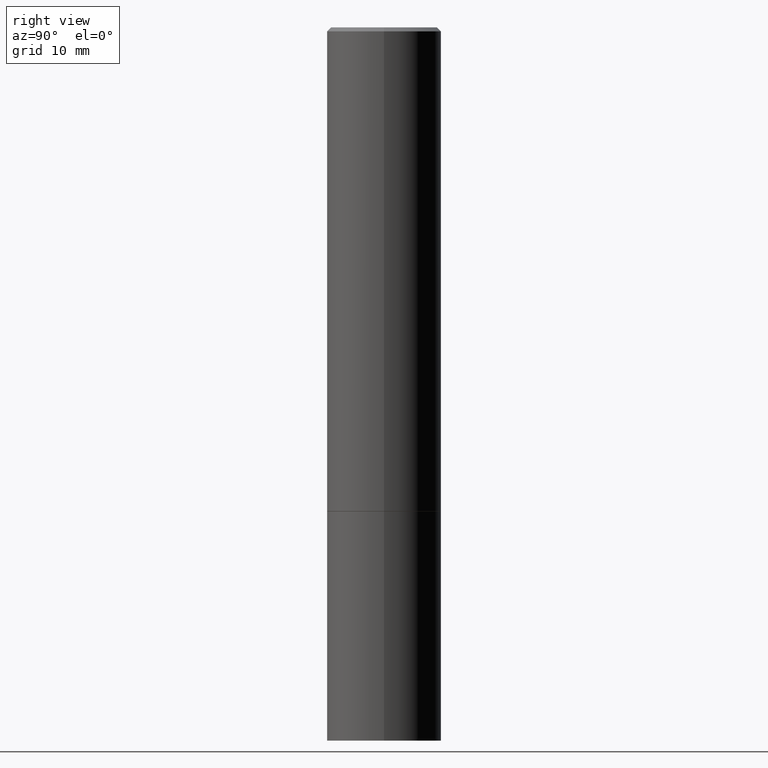
[diagram: clean part render]
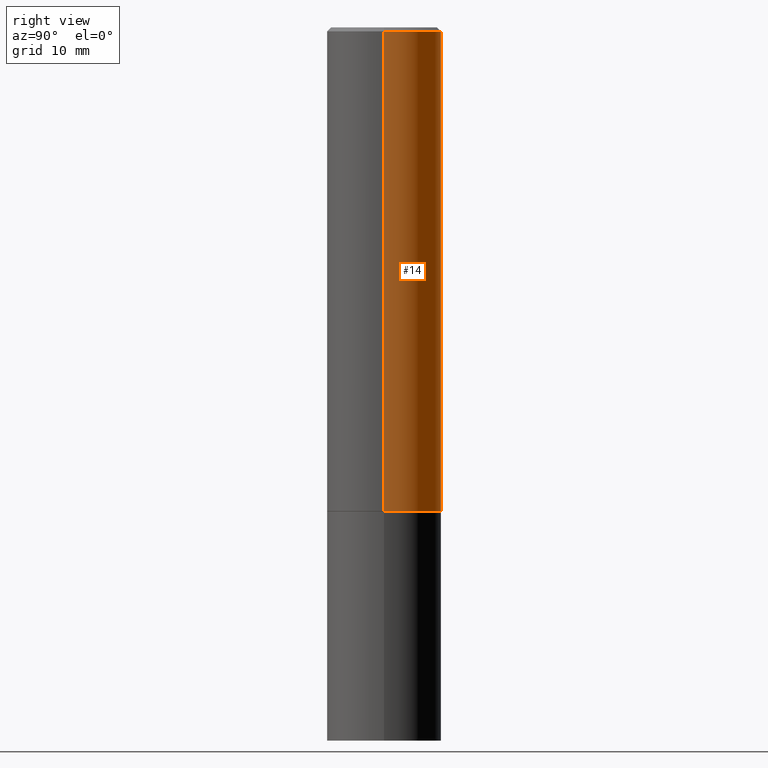
[diagram: same view with one face highlighted and labeled with its STEP entity id]
A machine part, right view. The second image highlights one B-rep face of the part: STEP entity #14.
In plain terms, the highlighted cylindrical surface (partial cylindrical patch) has radius 7.1437 mm, axis along (-0, 0, 1).
Its self-contained STEP definition (entity closure, byte-faithful):
#14 = ADVANCED_FACE ( 'NONE', ( #168 ), #37, .T. ) ;
#17 = DIRECTION ( 'NONE',  ( -2.445468806185136597E-29, 3.491481338843145583E-15, 1.000000000000000000 ) ) ;
#35 = ORIENTED_EDGE ( 'NONE', *, *, #46, .F. ) ;
#37 = CYLINDRICAL_SURFACE ( 'NONE', #345, 0.2812499999999998335 ) ;
#38 = CARTESIAN_POINT ( 'NONE',  ( 0.2812499999999996114, -1.999344688650103789E-15, -0.02000000000000006981 ) ) ;
#46 = EDGE_CURVE ( 'NONE', #140, #130, #193, .T. ) ;
#49 = ORIENTED_EDGE ( 'NONE', *, *, #204, .F. ) ;
#64 = CARTESIAN_POINT ( 'NONE',  ( 0.000000000000000000, 0.000000000000000000, 0.000000000000000000 ) ) ;
#75 = VERTEX_POINT ( 'NONE', #117 ) ;
#87 = DIRECTION ( 'NONE',  ( -2.445468806185136877E-29, 3.491481338843145188E-15, 1.000000000000000000 ) ) ;
#94 = VECTOR ( 'NONE', #87, 39.37007874015748143 ) ;
#95 = CIRCLE ( 'NONE', #125, 0.2812500000000000555 ) ;
#97 = CARTESIAN_POINT ( 'NONE',  ( 5.805542945883512693E-29, -8.288776698413625533E-15, -2.373999999999999222 ) ) ;
#117 = CARTESIAN_POINT ( 'NONE',  ( -0.2812499999999996114, 1.894128626322396848E-15, -0.02000000000000006981 ) ) ;
#123 = CARTESIAN_POINT ( 'NONE',  ( 4.890937612370289799E-31, -6.982962677686315028E-17, -0.02000000000000006981 ) ) ;
#125 = AXIS2_PLACEMENT_3D ( 'NONE', #97, #207, #202 ) ;
#130 = VERTEX_POINT ( 'NONE', #38 ) ;
#140 = VERTEX_POINT ( 'NONE', #148 ) ;
#148 = CARTESIAN_POINT ( 'NONE',  ( 0.2812500000000000555, -1.025273495151288883E-14, -2.373999999999999222 ) ) ;
#159 = ORIENTED_EDGE ( 'NONE', *, *, #310, .T. ) ;
#168 = FACE_OUTER_BOUND ( 'NONE', #185, .T. ) ;
#172 = DIRECTION ( 'NONE',  ( 1.000000000000000000, -6.982962677686266711E-15, 4.876176775795935793E-29 ) ) ;
#175 = CARTESIAN_POINT ( 'NONE',  ( -0.2812500000000000000, -2.180901718269959487E-15, -2.373999999999999222 ) ) ;
#178 = DIRECTION ( 'NONE',  ( -2.445468806185136877E-29, 3.491481338843145188E-15, 1.000000000000000000 ) ) ;
#185 = EDGE_LOOP ( 'NONE', ( #215, #159, #49, #35 ) ) ;
#193 = LINE ( 'NONE', #284, #94 ) ;
#202 = DIRECTION ( 'NONE',  ( 1.000000000000000000, -6.982962677686268288E-15, 0.000000000000000000 ) ) ;
#204 = EDGE_CURVE ( 'NONE', #130, #75, #271, .T. ) ;
#207 = DIRECTION ( 'NONE',  ( -2.445468806185136597E-29, 3.491481338843145583E-15, 1.000000000000000000 ) ) ;
#215 = ORIENTED_EDGE ( 'NONE', *, *, #336, .T. ) ;
#226 = VERTEX_POINT ( 'NONE', #175 ) ;
#229 = LINE ( 'NONE', #322, #245 ) ;
#245 = VECTOR ( 'NONE', #178, 39.37007874015748143 ) ;
#248 = DIRECTION ( 'NONE',  ( -2.445468806185136597E-29, 3.491481338843145583E-15, 1.000000000000000000 ) ) ;
#260 = DIRECTION ( 'NONE',  ( 1.000000000000000000, -6.982962677686268288E-15, 0.000000000000000000 ) ) ;
#271 = CIRCLE ( 'NONE', #346, 0.2812499999999996114 ) ;
#284 = CARTESIAN_POINT ( 'NONE',  ( 0.2812499999999998335, -1.963958253099261329E-15, 1.371424718192606171E-29 ) ) ;
#310 = EDGE_CURVE ( 'NONE', #226, #75, #229, .T. ) ;
#322 = CARTESIAN_POINT ( 'NONE',  ( -0.2812499999999998335, 1.998401444325280589E-15, -1.383450494134191428E-29 ) ) ;
#336 = EDGE_CURVE ( 'NONE', #140, #226, #95, .T. ) ;
#345 = AXIS2_PLACEMENT_3D ( 'NONE', #64, #248, #172 ) ;
#346 = AXIS2_PLACEMENT_3D ( 'NONE', #123, #17, #260 ) ;